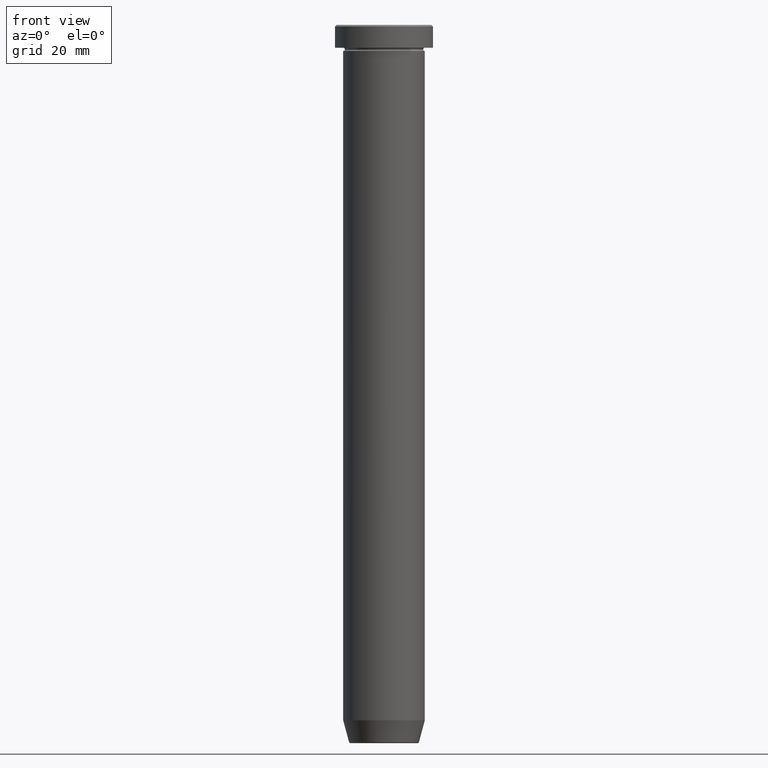
[diagram: clean part render]
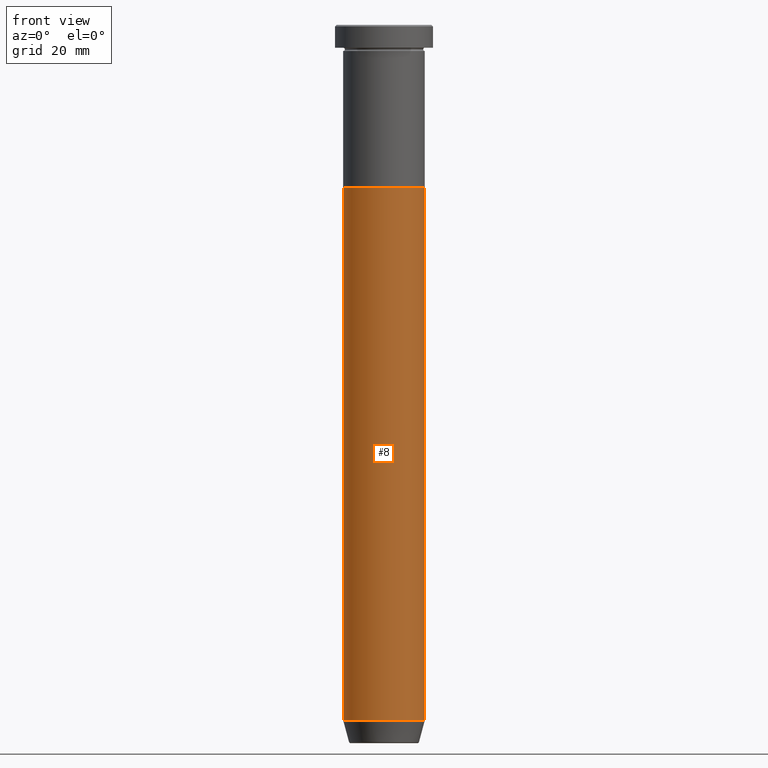
[diagram: same view with one face highlighted and labeled with its STEP entity id]
A machine part, front view. The second image highlights one B-rep face of the part: STEP entity #8.
In plain terms, the highlighted cylindrical surface (partial cylindrical patch) has radius 12.5 mm, axis along (-0, -0, 1).
Its self-contained STEP definition (entity closure, byte-faithful):
#8 = ADVANCED_FACE ( 'NONE', ( #585 ), #570, .T. ) ;
#17 = EDGE_CURVE ( 'NONE', #226, #66, #248, .T. ) ;
#59 = CARTESIAN_POINT ( 'NONE',  ( 12.50000000000000000, 0.000000000000000000, -50.00000000000000000 ) ) ;
#66 = VERTEX_POINT ( 'NONE', #270 ) ;
#73 = AXIS2_PLACEMENT_3D ( 'NONE', #575, #158, #524 ) ;
#80 = VECTOR ( 'NONE', #224, 1000.000000000000000 ) ;
#83 = EDGE_CURVE ( 'NONE', #226, #505, #461, .T. ) ;
#121 = VERTEX_POINT ( 'NONE', #59 ) ;
#141 = CARTESIAN_POINT ( 'NONE',  ( 0.000000000000000000, 0.000000000000000000, -213.0000000000000284 ) ) ;
#146 = EDGE_LOOP ( 'NONE', ( #498, #344, #333, #423 ) ) ;
#158 = DIRECTION ( 'NONE',  ( -0.000000000000000000, -0.000000000000000000, 1.000000000000000000 ) ) ;
#194 = VECTOR ( 'NONE', #356, 1000.000000000000000 ) ;
#214 = CARTESIAN_POINT ( 'NONE',  ( 0.000000000000000000, 0.000000000000000000, 0.000000000000000000 ) ) ;
#224 = DIRECTION ( 'NONE',  ( -0.000000000000000000, -0.000000000000000000, 1.000000000000000000 ) ) ;
#226 = VERTEX_POINT ( 'NONE', #293 ) ;
#243 = EDGE_CURVE ( 'NONE', #66, #121, #398, .T. ) ;
#248 = LINE ( 'NONE', #408, #80 ) ;
#270 = CARTESIAN_POINT ( 'NONE',  ( -12.50000000000000000, 1.530808498934191521E-15, -50.00000000000000000 ) ) ;
#293 = CARTESIAN_POINT ( 'NONE',  ( -12.50000000000000000, 1.530808498934191521E-15, -213.0000000000000284 ) ) ;
#294 = CARTESIAN_POINT ( 'NONE',  ( 12.50000000000000000, 0.000000000000000000, -213.0000000000000284 ) ) ;
#310 = AXIS2_PLACEMENT_3D ( 'NONE', #214, #520, #476 ) ;
#323 = DIRECTION ( 'NONE',  ( 1.000000000000000000, 0.000000000000000000, 0.000000000000000000 ) ) ;
#333 = ORIENTED_EDGE ( 'NONE', *, *, #562, .T. ) ;
#344 = ORIENTED_EDGE ( 'NONE', *, *, #83, .T. ) ;
#356 = DIRECTION ( 'NONE',  ( -0.000000000000000000, -0.000000000000000000, 1.000000000000000000 ) ) ;
#398 = CIRCLE ( 'NONE', #73, 12.50000000000000000 ) ;
#408 = CARTESIAN_POINT ( 'NONE',  ( -12.50000000000000000, 1.530808498934191521E-15, 0.000000000000000000 ) ) ;
#419 = AXIS2_PLACEMENT_3D ( 'NONE', #141, #551, #323 ) ;
#423 = ORIENTED_EDGE ( 'NONE', *, *, #243, .F. ) ;
#461 = CIRCLE ( 'NONE', #419, 12.50000000000000000 ) ;
#476 = DIRECTION ( 'NONE',  ( 1.000000000000000000, 0.000000000000000000, 0.000000000000000000 ) ) ;
#489 = CARTESIAN_POINT ( 'NONE',  ( 12.50000000000000000, 0.000000000000000000, 0.000000000000000000 ) ) ;
#498 = ORIENTED_EDGE ( 'NONE', *, *, #17, .F. ) ;
#505 = VERTEX_POINT ( 'NONE', #294 ) ;
#520 = DIRECTION ( 'NONE',  ( -0.000000000000000000, -0.000000000000000000, 1.000000000000000000 ) ) ;
#524 = DIRECTION ( 'NONE',  ( 1.000000000000000000, 0.000000000000000000, 0.000000000000000000 ) ) ;
#537 = LINE ( 'NONE', #489, #194 ) ;
#551 = DIRECTION ( 'NONE',  ( -0.000000000000000000, -0.000000000000000000, 1.000000000000000000 ) ) ;
#562 = EDGE_CURVE ( 'NONE', #505, #121, #537, .T. ) ;
#570 = CYLINDRICAL_SURFACE ( 'NONE', #310, 12.50000000000000000 ) ;
#575 = CARTESIAN_POINT ( 'NONE',  ( 0.000000000000000000, 0.000000000000000000, -50.00000000000000000 ) ) ;
#585 = FACE_OUTER_BOUND ( 'NONE', #146, .T. ) ;